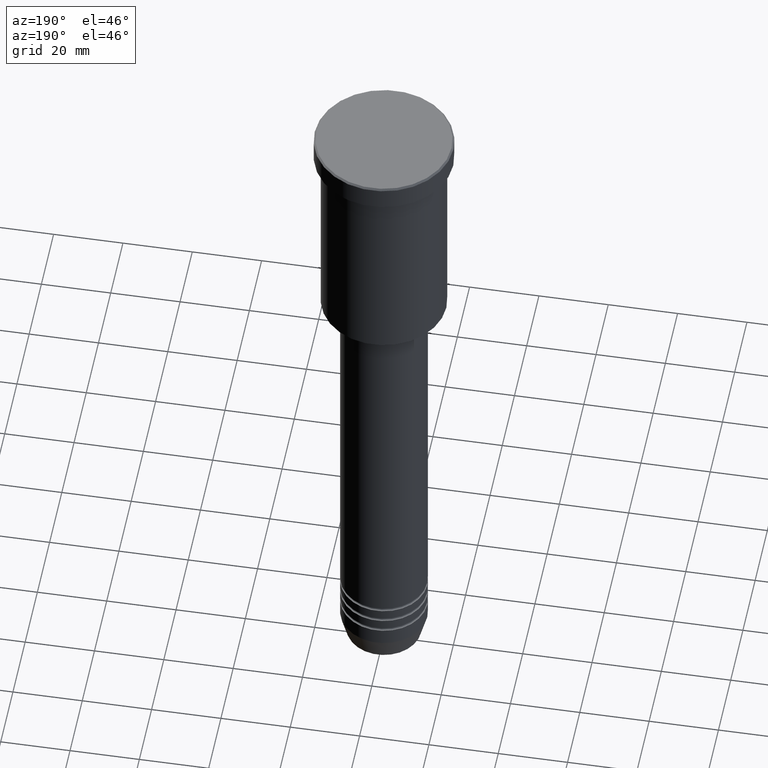
[diagram: clean part render]
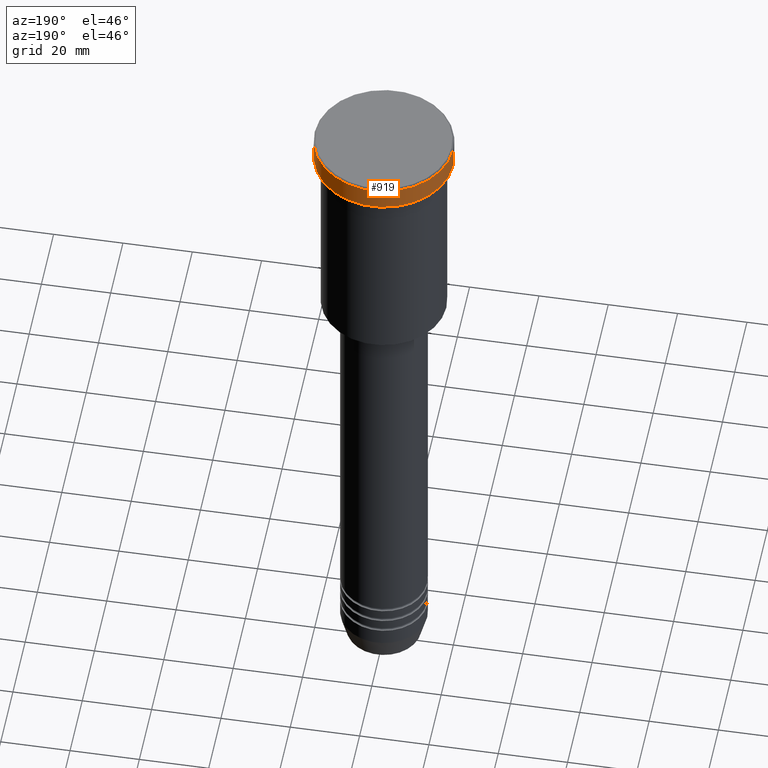
[diagram: same view with one face highlighted and labeled with its STEP entity id]
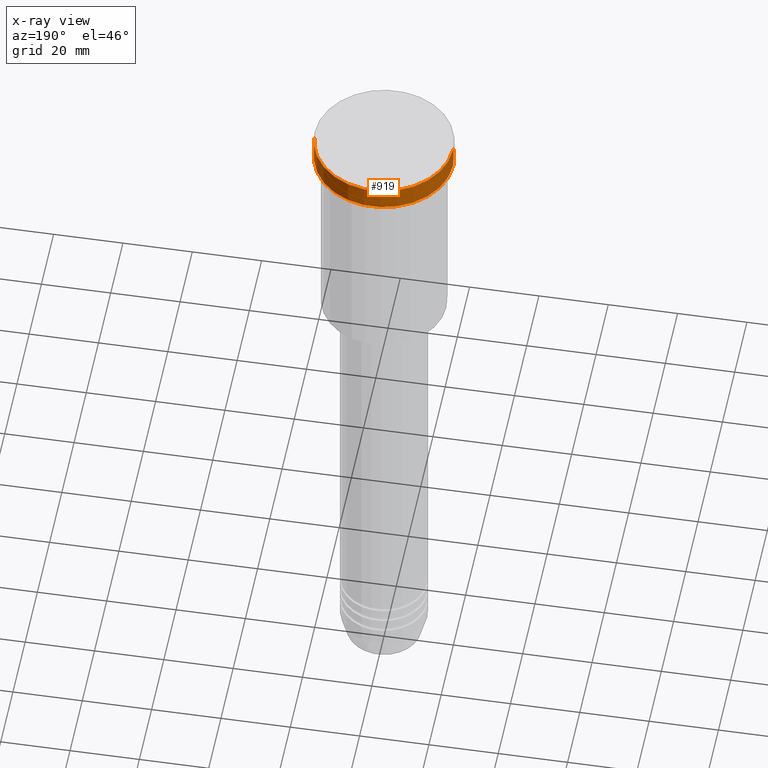
[diagram: x-ray of the same camera — body ghosted, the highlighted face saturated]
A machine part, auxiliary view. The second image highlights one B-rep face of the part: STEP entity #919.
The next image is the same camera in x-ray: the body ghosted, the highlighted face saturated — about 0% of this face is hidden behind the body in this view.
In plain terms, the highlighted cylindrical surface (partial cylindrical patch) has radius 20 mm, axis along (-0, -0, 1).
Its self-contained STEP definition (entity closure, byte-faithful):
#12 = EDGE_CURVE ( 'NONE', #1078, #786, #46, .T. ) ;
#18 = ORIENTED_EDGE ( 'NONE', *, *, #12, .T. ) ;
#46 = CIRCLE ( 'NONE', #1045, 20.00000000000000000 ) ;
#53 = CYLINDRICAL_SURFACE ( 'NONE', #447, 20.00000000000000000 ) ;
#118 = DIRECTION ( 'NONE',  ( 1.000000000000000000, 0.000000000000000000, 0.000000000000000000 ) ) ;
#133 = EDGE_LOOP ( 'NONE', ( #653, #1093, #18, #301 ) ) ;
#153 = DIRECTION ( 'NONE',  ( -0.000000000000000000, -0.000000000000000000, 1.000000000000000000 ) ) ;
#276 = DIRECTION ( 'NONE',  ( 1.000000000000000000, 0.000000000000000000, 0.000000000000000000 ) ) ;
#301 = ORIENTED_EDGE ( 'NONE', *, *, #1183, .F. ) ;
#363 = CARTESIAN_POINT ( 'NONE',  ( 20.00000000000000000, 0.000000000000000000, -6.999999999999995559 ) ) ;
#373 = VERTEX_POINT ( 'NONE', #1171 ) ;
#431 = VECTOR ( 'NONE', #570, 1000.000000000000000 ) ;
#447 = AXIS2_PLACEMENT_3D ( 'NONE', #601, #153, #276 ) ;
#458 = LINE ( 'NONE', #1103, #694 ) ;
#459 = EDGE_CURVE ( 'NONE', #373, #1078, #458, .T. ) ;
#527 = CIRCLE ( 'NONE', #1088, 20.00000000000000000 ) ;
#570 = DIRECTION ( 'NONE',  ( -0.000000000000000000, -0.000000000000000000, 1.000000000000000000 ) ) ;
#594 = FACE_OUTER_BOUND ( 'NONE', #133, .T. ) ;
#597 = VERTEX_POINT ( 'NONE', #363 ) ;
#601 = CARTESIAN_POINT ( 'NONE',  ( 0.000000000000000000, 0.000000000000000000, 0.000000000000000000 ) ) ;
#632 = DIRECTION ( 'NONE',  ( -0.000000000000000000, -0.000000000000000000, 1.000000000000000000 ) ) ;
#642 = CARTESIAN_POINT ( 'NONE',  ( 0.000000000000000000, 0.000000000000000000, -6.999999999999995559 ) ) ;
#646 = DIRECTION ( 'NONE',  ( 1.000000000000000000, 0.000000000000000000, 0.000000000000000000 ) ) ;
#653 = ORIENTED_EDGE ( 'NONE', *, *, #1002, .T. ) ;
#694 = VECTOR ( 'NONE', #829, 1000.000000000000000 ) ;
#786 = VERTEX_POINT ( 'NONE', #1044 ) ;
#829 = DIRECTION ( 'NONE',  ( -0.000000000000000000, -0.000000000000000000, 1.000000000000000000 ) ) ;
#844 = LINE ( 'NONE', #1111, #431 ) ;
#857 = CARTESIAN_POINT ( 'NONE',  ( -20.00000000000000000, 2.449293598294706513E-15, -0.4999999999999970024 ) ) ;
#919 = ADVANCED_FACE ( 'NONE', ( #594 ), #53, .T. ) ;
#1002 = EDGE_CURVE ( 'NONE', #597, #373, #527, .T. ) ;
#1028 = CARTESIAN_POINT ( 'NONE',  ( 0.000000000000000000, 0.000000000000000000, -0.4999999999999970024 ) ) ;
#1044 = CARTESIAN_POINT ( 'NONE',  ( 20.00000000000000000, 0.000000000000000000, -0.4999999999999970024 ) ) ;
#1045 = AXIS2_PLACEMENT_3D ( 'NONE', #1028, #1116, #118 ) ;
#1078 = VERTEX_POINT ( 'NONE', #857 ) ;
#1088 = AXIS2_PLACEMENT_3D ( 'NONE', #642, #632, #646 ) ;
#1093 = ORIENTED_EDGE ( 'NONE', *, *, #459, .T. ) ;
#1103 = CARTESIAN_POINT ( 'NONE',  ( -20.00000000000000000, 2.449293598294706513E-15, 0.000000000000000000 ) ) ;
#1111 = CARTESIAN_POINT ( 'NONE',  ( 20.00000000000000000, 0.000000000000000000, 0.000000000000000000 ) ) ;
#1116 = DIRECTION ( 'NONE',  ( 0.000000000000000000, 0.000000000000000000, -1.000000000000000000 ) ) ;
#1171 = CARTESIAN_POINT ( 'NONE',  ( -20.00000000000000000, 2.449293598294706513E-15, -6.999999999999995559 ) ) ;
#1183 = EDGE_CURVE ( 'NONE', #597, #786, #844, .T. ) ;